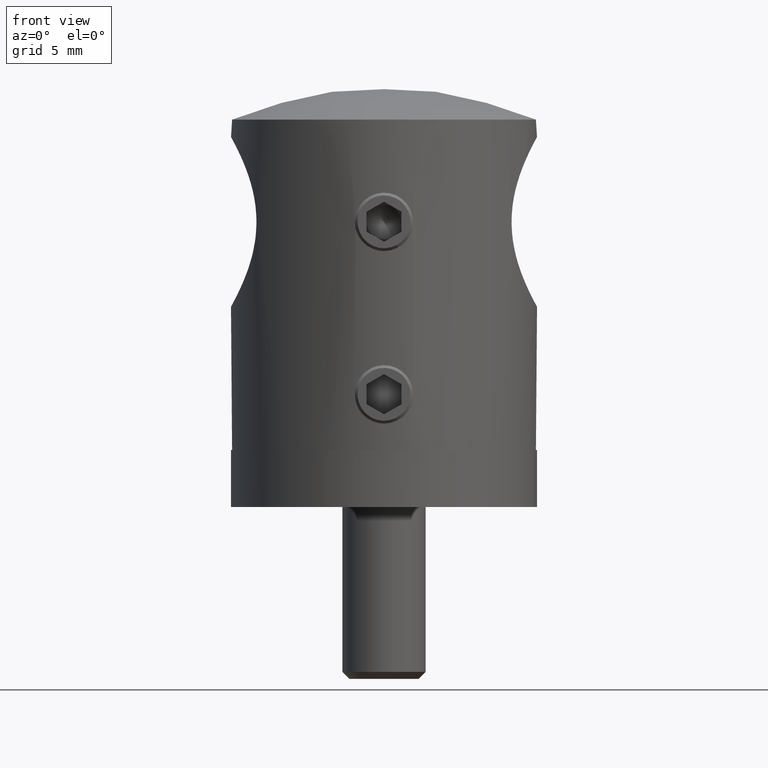
[diagram: clean part render]
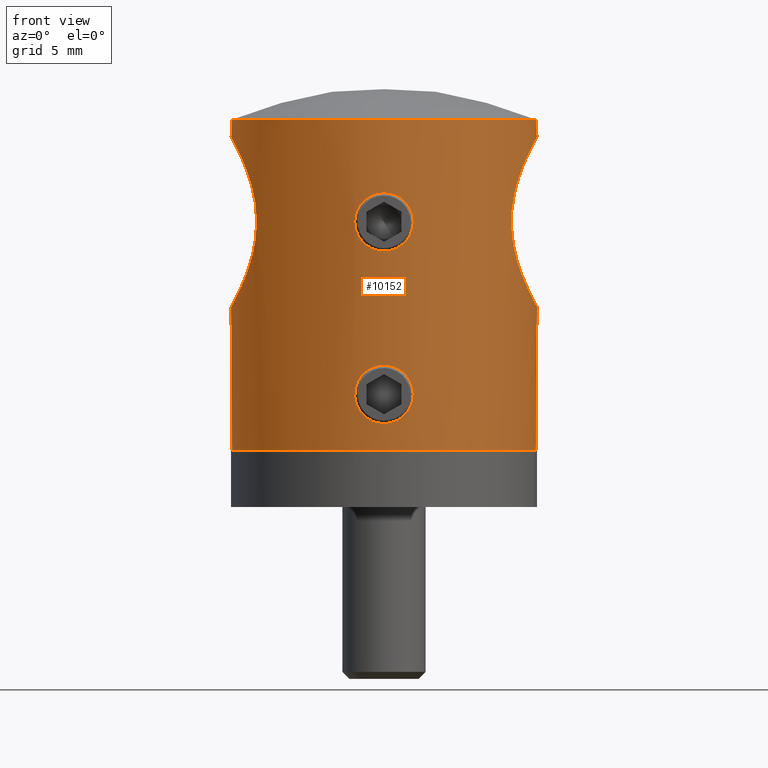
[diagram: same view with one face highlighted and labeled with its STEP entity id]
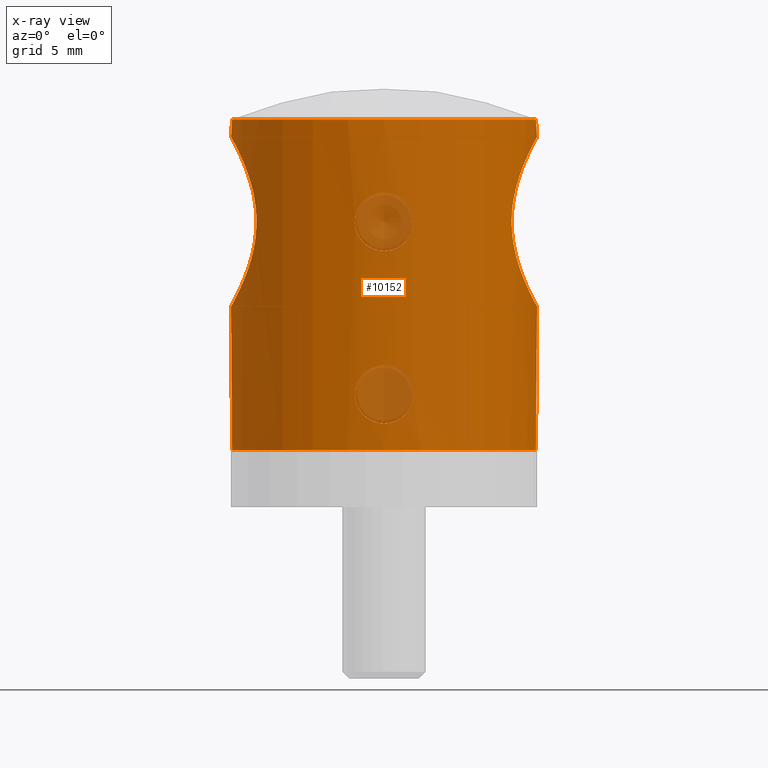
[diagram: x-ray of the same camera — body ghosted, the highlighted face saturated]
A machine part, front view. The second image highlights one B-rep face of the part: STEP entity #10152.
The next image is the same camera in x-ray: the body ghosted, the highlighted face saturated — about 6% of this face is hidden behind the body in this view.
In plain terms, the highlighted cylindrical surface (bore or boss wall) has radius 11 mm, axis along (0, 0, -1).
Its self-contained STEP definition (entity closure, byte-faithful):
#184 = CARTESIAN_POINT ( 'NONE',  ( 10.99905965626380500, 0.4319682143558744025, 22.49830428873475086 ) ) ;
#385 = CARTESIAN_POINT ( 'NONE',  ( -0.9298327460409532286, -10.96136311852415801, 5.887892041088646167 ) ) ;
#439 = CARTESIAN_POINT ( 'NONE',  ( -9.994595874194324381, -4.596398108278323846, 20.41514637220333128 ) ) ;
#443 = CARTESIAN_POINT ( 'NONE',  ( 9.182824149353340459, 6.056814456260994461, 15.57100690659150999 ) ) ;
#456 = CARTESIAN_POINT ( 'NONE',  ( -1.669073131240827346, -10.87290827909674107, 5.281760315131696082 ) ) ;
#516 = CARTESIAN_POINT ( 'NONE',  ( -10.00013541345771273, -4.584346395257772322, 12.37109864061816822 ) ) ;
#538 = CARTESIAN_POINT ( 'NONE',  ( -1.823215479922151383, -10.84812657183627138, 2.948921815245837852 ) ) ;
#552 = CARTESIAN_POINT ( 'NONE',  ( 10.56848592839725320, -3.070138311554861055, 21.68581601544170567 ) ) ;
#594 = CARTESIAN_POINT ( 'NONE',  ( -9.404246883826662184, -5.706848822141821209, 18.56371187619918572 ) ) ;
#610 = CARTESIAN_POINT ( 'NONE',  ( -1.386736755965821688, -10.91267702308485710, 5.582939538335893737 ) ) ;
#815 = CARTESIAN_POINT ( 'NONE',  ( -9.875328383823168465, 4.851642139667729836, 12.68169681171465868 ) ) ;
#869 = CARTESIAN_POINT ( 'NONE',  ( 1.388537688308394857, -10.91244555373267566, 14.81866142276740561 ) ) ;
#891 = CARTESIAN_POINT ( 'NONE',  ( -10.82153467679175840, 2.008721309774863073, 10.62652596293655805 ) ) ;
#921 = CARTESIAN_POINT ( 'NONE',  ( 9.875328383823170242, -4.851642139667734277, 12.68169681171466756 ) ) ;
#937 = CARTESIAN_POINT ( 'NONE',  ( 1.992922399063342009, -10.81809270954977897, 17.07620312179293975 ) ) ;
#963 = CARTESIAN_POINT ( 'NONE',  ( -10.97668327814535694, 0.8221493798894820015, 10.34175555824983306 ) ) ;
#967 = CARTESIAN_POINT ( 'NONE',  ( 10.77884143829793651, 2.202631448935036484, 22.09190641235104735 ) ) ;
#1018 = CARTESIAN_POINT ( 'NONE',  ( 1.678338565524257975, -10.87295724076966152, 15.10854574596645961 ) ) ;
#1041 = CARTESIAN_POINT ( 'NONE',  ( -9.655843362379462391, 5.275096090437354057, 19.48856493924066058 ) ) ;
#1091 = CARTESIAN_POINT ( 'NONE',  ( -1.670711584421387119, -10.87265779864739557, 15.12031142914611337 ) ) ;
#1116 = CARTESIAN_POINT ( 'NONE',  ( -9.369915670549831432, 5.762779879413712614, 18.41008764505287942 ) ) ;
#1149 = CARTESIAN_POINT ( 'NONE',  ( 9.548936329887270702, -5.463500988949930637, 19.14152131049769423 ) ) ;
#1163 = CARTESIAN_POINT ( 'NONE',  ( -2.033263212878625659, -10.81048461628543400, 15.85718013527820780 ) ) ;
#1270 = CYLINDRICAL_SURFACE ( 'NONE', #16967, 10.99999999999999645 ) ;
#1309 = CARTESIAN_POINT ( 'NONE',  ( 9.653232611197093860, 5.279764526992453355, 13.31975750584613039 ) ) ;
#1416 = DIRECTION ( 'NONE',  ( 0.000000000000000000, 1.000000000000000000, 0.000000000000000000 ) ) ;
#1517 = CARTESIAN_POINT ( 'NONE',  ( 1.052791956378940297, -10.95010395737945252, 2.177794140304470716 ) ) ;
#1803 = FACE_OUTER_BOUND ( 'NONE', #9130, .T. ) ;
#1805 = EDGE_LOOP ( 'NONE', ( #17865 ) ) ;
#2042 = CARTESIAN_POINT ( 'NONE',  ( 2.100080576060142423, -10.79766926613581646, 4.136065025207183332 ) ) ;
#2057 = CARTESIAN_POINT ( 'NONE',  ( 10.88660539605093192, -1.587461163400297082, 22.29327081037907377 ) ) ;
#2120 = CARTESIAN_POINT ( 'NONE',  ( -1.885922255304095962, -10.83725952041489293, 4.933980694507825504 ) ) ;
#2173 = CARTESIAN_POINT ( 'NONE',  ( -10.99999999999999645, -5.149960319306146062E-16, 10.29999999999999716 ) ) ;
#2245 = CARTESIAN_POINT ( 'NONE',  ( -9.154625459611530403, -6.098592904478558729, 15.97188860518445530 ) ) ;
#2324 = CARTESIAN_POINT ( 'NONE',  ( -9.818003290387904869, -4.962056561256329879, 19.95341231550813532 ) ) ;
#2326 = FACE_BOUND ( 'NONE', #1805, .T. ) ;
#2345 = CARTESIAN_POINT ( 'NONE',  ( -0.5474969020630482408, -10.98720387291686329, 1.967917686179495140 ) ) ;
#2404 = CARTESIAN_POINT ( 'NONE',  ( -10.82349510489186883, -1.998464203924865012, 10.62285073282916592 ) ) ;
#2474 = CARTESIAN_POINT ( 'NONE',  ( -10.23523940358924200, -4.040947010503001202, 11.81391594917569243 ) ) ;
#2544 = CARTESIAN_POINT ( 'NONE',  ( -10.56848592839724965, 3.070138311554862831, 21.68581601544170567 ) ) ;
#2599 = CARTESIAN_POINT ( 'NONE',  ( 0.5472116004057729910, -10.98720989896580491, 18.43211351988966129 ) ) ;
#2623 = CARTESIAN_POINT ( 'NONE',  ( -10.99515712557069058, 0.3851602843953765287, 22.49128501828073112 ) ) ;
#2675 = CARTESIAN_POINT ( 'NONE',  ( 1.387671354983932126, -10.91256495734889498, 17.98222472745847966 ) ) ;
#2749 = CARTESIAN_POINT ( 'NONE',  ( 0.1380551056559316814, -10.99998945361096858, 18.49994475700558993 ) ) ;
#2778 = CARTESIAN_POINT ( 'NONE',  ( -10.91341900764948925, 1.391812421171598091, 22.34254261676390385 ) ) ;
#2807 = CARTESIAN_POINT ( 'NONE',  ( 9.295422111209902027, -5.882183215968439960, 18.02788356252802515 ) ) ;
#2820 = CARTESIAN_POINT ( 'NONE',  ( 2.099837753199914836, -10.79771649180664816, 16.12415606159400028 ) ) ;
#2848 = CARTESIAN_POINT ( 'NONE',  ( -10.23201466657478242, 4.049143934664146904, 11.82103939613443977 ) ) ;
#2896 = CARTESIAN_POINT ( 'NONE',  ( -0.9298327460409540057, -10.96136311852415801, 18.28789204108864297 ) ) ;
#2927 = CARTESIAN_POINT ( 'NONE',  ( 10.34600107115468148, 3.752229823401759035, 21.22572781584417001 ) ) ;
#2983 = EDGE_CURVE ( 'NONE', #6383, #6383, #9064, .T. ) ;
#3039 = ORIENTED_EDGE ( 'NONE', *, *, #18895, .T. ) ;
#3040 = CARTESIAN_POINT ( 'NONE',  ( 10.00013541345771273, 4.584346395257774986, 12.37109864061816822 ) ) ;
#3145 = CARTESIAN_POINT ( 'NONE',  ( 0.000000000000000000, -10.99999999999999645, 1.900000000000005906 ) ) ;
#3242 = CARTESIAN_POINT ( 'NONE',  ( 10.34725143670187641, -3.748763762359414553, 11.57160730895324185 ) ) ;
#3459 = CARTESIAN_POINT ( 'NONE',  ( 10.88669551587766549, -1.625843207734909646, 10.50636876088165295 ) ) ;
#3609 = CARTESIAN_POINT ( 'NONE',  ( 10.55980625606058787, -3.085983629272203377, 11.13443178477246676 ) ) ;
#3621 = CARTESIAN_POINT ( 'NONE',  ( 2.086371845620103915, -10.80036110415988482, 4.275574042742800174 ) ) ;
#3693 = CARTESIAN_POINT ( 'NONE',  ( 0.6781376468636781674, -10.97981628967169421, 2.007749422554939489 ) ) ;
#3708 = CARTESIAN_POINT ( 'NONE',  ( 10.99515712557069236, -0.3851602843953726985, 22.49128501828073823 ) ) ;
#3762 = CARTESIAN_POINT ( 'NONE',  ( 2.032659403802353104, -10.81059865162793798, 4.545146108271634233 ) ) ;
#3842 = CARTESIAN_POINT ( 'NONE',  ( -0.2735815360057540224, -11.00002099589624471, 6.100109978512685771 ) ) ;
#3892 = CARTESIAN_POINT ( 'NONE',  ( -10.34600107115467971, -3.752229823401756370, 21.22572781584415935 ) ) ;
#3956 = EDGE_CURVE ( 'NONE', #5852, #5852, #4131, .T. ) ;
#3962 = CARTESIAN_POINT ( 'NONE',  ( -9.186070511604009781, -6.051171545997144463, 17.19691923427018310 ) ) ;
#3983 = CARTESIAN_POINT ( 'NONE',  ( -1.582514419226410674, -10.88600606640207680, 2.612812166464707264 ) ) ;
#4040 = CARTESIAN_POINT ( 'NONE',  ( -10.05928916644563031, -4.453430819430041154, 12.22689457929946322 ) ) ;
#4060 = CARTESIAN_POINT ( 'NONE',  ( -1.670711584421386453, -10.87265779864739379, 2.720311429146118787 ) ) ;
#4131 = B_SPLINE_CURVE_WITH_KNOTS ( 'NONE', 3,
 ( #5857, #17640, #9259, #4235, #10727, #17718, #7625, #19432, #869, #1018, #21362, #9550, #2820, #4510, #9405, #12824, #937, #16118, #4449, #7847, #6153, #2675, #12968, #11309, #14503, #12752, #2599, #19582, #2749, #4581, #19658, #2896, #19727, #9479, #11165, #4378, #21291, #14430, #7774, #6077, #14571, #21441, #17940, #1163, #11240, #16402, #19802, #1091, #17867, #4308, #6219, #16326, #6290, #12893, #14640, #6005 ),
 .UNSPECIFIED., .T., .F.,
 ( 4, 2, 2, 2, 2, 2, 2, 2, 2, 2, 2, 2, 2, 2, 2, 2, 2, 2, 2, 2, 2, 2, 2, 2, 2, 2, 2, 4 ),
 ( 0.000000000000000000, 0.0004112398612379109409, 0.0008224797224758220986, 0.001233719583713733040, 0.001644959444951644414, 0.002467439167427463477, 0.003289918889903286660, 0.003701158751141203455, 0.004112398612379120251, 0.004523638473617037914, 0.004934878334854954710, 0.005346118196092872372, 0.005757358057330790035, 0.006168597918568707698, 0.006579837779806624494, 0.007402317502282459820, 0.007813557363520375748, 0.008224797224758294278, 0.008636037085996209339, 0.009047276947234127870, 0.009869756669709971869, 0.01028099653094788866, 0.01069223639218580546, 0.01110347625342372226, 0.01151471611466163905, 0.01233719583713747785, 0.01274843569837539811, 0.01315967555961331664 ),
 .UNSPECIFIED. ) ;
#4191 = CARTESIAN_POINT ( 'NONE',  ( -10.99999999999999112, -0.4119544153468477909, 10.29999999999999716 ) ) ;
#4235 = CARTESIAN_POINT ( 'NONE',  ( 0.5445907593099172939, -10.98733418043456744, 14.36721771197882980 ) ) ;
#4257 = CARTESIAN_POINT ( 'NONE',  ( -10.88660539605092836, 1.587461163400300856, 22.29327081037905955 ) ) ;
#4308 = CARTESIAN_POINT ( 'NONE',  ( -1.293096815573840486, -10.92546660261072944, 14.72295840366905928 ) ) ;
#4331 = CARTESIAN_POINT ( 'NONE',  ( -10.55980625606059320, 3.085983629272203377, 11.13443178477245787 ) ) ;
#4363 = CARTESIAN_POINT ( 'NONE',  ( 9.411849063529514225, -5.694304542915052281, 18.59632450029121031 ) ) ;
#4378 = CARTESIAN_POINT ( 'NONE',  ( -1.580486696390911661, -10.88630426008027463, 17.78953165307775919 ) ) ;
#4449 = CARTESIAN_POINT ( 'NONE',  ( 1.821864279235778428, -10.84835111419837084, 17.45331546566203329 ) ) ;
#4470 = CARTESIAN_POINT ( 'NONE',  ( -10.00363043224886361, 4.584473309947989961, 20.44285449540664956 ) ) ;
#4510 = CARTESIAN_POINT ( 'NONE',  ( 2.100080576060139315, -10.79766926613582001, 16.53606502520718990 ) ) ;
#4581 = CARTESIAN_POINT ( 'NONE',  ( -0.2735815360057561318, -11.00002099589623761, 18.50010997851268257 ) ) ;
#4931 = CARTESIAN_POINT ( 'NONE',  ( 1.887465525486915707, -10.83698959357259994, 4.930840609722912049 ) ) ;
#5286 = CARTESIAN_POINT ( 'NONE',  ( 11.00000000000000000, 2.981555974335137194E-16, 10.29999999999999716 ) ) ;
#5304 = CARTESIAN_POINT ( 'NONE',  ( 0.2757686476963312483, -10.99736528176723027, 1.913679176500869383 ) ) ;
#5508 = CARTESIAN_POINT ( 'NONE',  ( -9.882311817479495275, -4.833099761158379692, 12.67314814702374726 ) ) ;
#5599 = CARTESIAN_POINT ( 'NONE',  ( -2.100101276507924997, -10.79766524018844720, 3.862846557347953791 ) ) ;
#5625 = CIRCLE ( 'NONE', #18282, 10.99999999999999645 ) ;
#5656 = CARTESIAN_POINT ( 'NONE',  ( -9.823416292433382324, -4.951332716768895637, 12.83170122485886644 ) ) ;
#5659 = CARTESIAN_POINT ( 'NONE',  ( 9.159751136064906873, 6.090938158330286178, 16.79016624204475150 ) ) ;
#5677 = CARTESIAN_POINT ( 'NONE',  ( -0.1390778096618648929, -10.99999999999999645, 1.900000000000005462 ) ) ;
#5726 = CARTESIAN_POINT ( 'NONE',  ( -10.56516037208887226, -3.081656113116343132, 11.12078256614180738 ) ) ;
#5744 = CARTESIAN_POINT ( 'NONE',  ( 0.2774242944193018867, -10.99732956950989937, 6.086135579055919287 ) ) ;
#5802 = CARTESIAN_POINT ( 'NONE',  ( -9.205781148332752295, -6.021279925512385667, 17.39743835238009950 ) ) ;
#5840 = CARTESIAN_POINT ( 'NONE',  ( 9.884558394909726431, -4.832955114603755042, 20.14278198770373152 ) ) ;
#5852 = VERTEX_POINT ( 'NONE', #13215 ) ;
#5857 = CARTESIAN_POINT ( 'NONE',  ( 1.490777987167568597E-16, -10.99999999999999467, 14.30000000000000426 ) ) ;
#5880 = DIRECTION ( 'NONE',  ( -0.000000000000000000, 1.020538999289461417E-16, -1.000000000000000000 ) ) ;
#5953 = CARTESIAN_POINT ( 'NONE',  ( -10.82333026450579361, 1.973254160026639781, 22.17554688403683727 ) ) ;
#5988 = CARTESIAN_POINT ( 'NONE',  ( 9.369915670549829656, -5.762779879413711726, 18.41008764505288298 ) ) ;
#6005 = CARTESIAN_POINT ( 'NONE',  ( 1.490777987167568597E-16, -10.99999999999999467, 14.30000000000000426 ) ) ;
#6031 = CARTESIAN_POINT ( 'NONE',  ( 10.05375444080992331, 4.465900659990698962, 20.55976037867542061 ) ) ;
#6077 = CARTESIAN_POINT ( 'NONE',  ( -2.044856290180038894, -10.80879962882139722, 16.95195426945476669 ) ) ;
#6101 = CARTESIAN_POINT ( 'NONE',  ( -9.182846360408928987, 6.056809541581210432, 17.23151101186771328 ) ) ;
#6130 = EDGE_LOOP ( 'NONE', ( #11867 ) ) ;
#6153 = CARTESIAN_POINT ( 'NONE',  ( 1.582902319642922162, -10.88596003962311087, 17.78689838275667157 ) ) ;
#6219 = CARTESIAN_POINT ( 'NONE',  ( -1.059417076819557213, -10.95179245714164828, 14.56629903712062735 ) ) ;
#6290 = CARTESIAN_POINT ( 'NONE',  ( -0.5474969020630467975, -10.98720387291686862, 14.36791768617950105 ) ) ;
#6359 = VERTEX_POINT ( 'NONE', #14954 ) ;
#6383 = VERTEX_POINT ( 'NONE', #11714 ) ;
#6475 = CARTESIAN_POINT ( 'NONE',  ( 0.000000000000000000, 0.000000000000000000, 16.39999999999999858 ) ) ;
#6636 = CARTESIAN_POINT ( 'NONE',  ( 1.387671354983932126, -10.91256495734889853, 5.582224727458489077 ) ) ;
#6982 = CARTESIAN_POINT ( 'NONE',  ( 10.97668327814536227, -0.8221493798894827787, 10.34175555824982951 ) ) ;
#7063 = CARTESIAN_POINT ( 'NONE',  ( 9.153253516029332459, 6.100651666123667383, 16.58324285485192107 ) ) ;
#7149 = CARTESIAN_POINT ( 'NONE',  ( 0.9322983872529664318, -10.96116125874258351, 2.113269296229719263 ) ) ;
#7223 = EDGE_LOOP ( 'NONE', ( #18488 ) ) ;
#7300 = CARTESIAN_POINT ( 'NONE',  ( -1.052429674837032314, -10.95014267461733759, 5.822448595598599397 ) ) ;
#7350 = CARTESIAN_POINT ( 'NONE',  ( -10.66142031955351044, -2.734231561115278986, 10.93252429363031908 ) ) ;
#7460 = CARTESIAN_POINT ( 'NONE',  ( 10.35569616419128813, -3.725345759223086972, 21.24638000732665333 ) ) ;
#7545 = EDGE_CURVE ( 'NONE', #20904, #20904, #12180, .T. ) ;
#7576 = CARTESIAN_POINT ( 'NONE',  ( -10.95673552425201969, 0.9948883876327735409, 22.42172331346568015 ) ) ;
#7581 = CARTESIAN_POINT ( 'NONE',  ( 9.818003290387901316, 4.962056561256333431, 19.95341231550813532 ) ) ;
#7625 = CARTESIAN_POINT ( 'NONE',  ( 1.052791956378939187, -10.95010395737945252, 14.57779414030447285 ) ) ;
#7649 = CARTESIAN_POINT ( 'NONE',  ( -10.65567692228154684, 2.736668129976457031, 10.94471346896226116 ) ) ;
#7655 = CARTESIAN_POINT ( 'NONE',  ( 9.876850331807258243, 4.844238823729229537, 20.11236126726327811 ) ) ;
#7685 = CARTESIAN_POINT ( 'NONE',  ( 9.648512081601323231, -5.288360497444984709, 13.33447340568116957 ) ) ;
#7727 = CARTESIAN_POINT ( 'NONE',  ( -11.00042874672050530, 0.1790107633385689678, 22.50077315433566838 ) ) ;
#7758 = CARTESIAN_POINT ( 'NONE',  ( 9.182846360408928987, -6.056809541581207768, 17.23151101186771683 ) ) ;
#7774 = CARTESIAN_POINT ( 'NONE',  ( -1.885922255304097961, -10.83725952041489649, 17.33398069450782586 ) ) ;
#7847 = CARTESIAN_POINT ( 'NONE',  ( 1.670043013049523850, -10.87275805320107480, 17.68047618358273354 ) ) ;
#7876 = CARTESIAN_POINT ( 'NONE',  ( -10.88669551587766016, 1.625843207734907425, 10.50636876088165117 ) ) ;
#8141 = FACE_BOUND ( 'NONE', #7223, .T. ) ;
#8324 = CARTESIAN_POINT ( 'NONE',  ( 10.23201466657477887, -4.049143934664146904, 11.82103939613443444 ) ) ;
#8343 = CARTESIAN_POINT ( 'NONE',  ( 10.99999999999999822, 0.4119544153468484571, 10.29999999999999538 ) ) ;
#8622 = CARTESIAN_POINT ( 'NONE',  ( 10.82153467679176373, -2.008721309774862185, 10.62652596293655805 ) ) ;
#8907 = CARTESIAN_POINT ( 'NONE',  ( -10.35109153156164119, -3.738197719850758105, 11.56340833636307686 ) ) ;
#8976 = CARTESIAN_POINT ( 'NONE',  ( -10.77884143829794361, -2.202631448935035152, 22.09190641235105090 ) ) ;
#8996 = CARTESIAN_POINT ( 'NONE',  ( -0.6806038088607763159, -10.97965432502793170, 2.008647596143616543 ) ) ;
#9064 = B_SPLINE_CURVE_WITH_KNOTS ( 'NONE', 3,
 ( #2173, #4191, #12554, #14167, #2404, #7350, #5726, #8907, #2474, #4040, #516, #5508, #5656, #15855, #15930, #14087, #15782, #19069, #2245, #18991, #12398, #3962, #5802, #17590, #10753, #19300, #594, #21010, #10605, #2324, #17446, #439, #12323, #14012, #3892, #15712, #20859, #8976, #20783, #12478, #19683, #17667, #14381, #7727, #2623, #16216, #7576, #2778, #4257, #5953, #19385, #16141, #2544, #19608, #9350, #4470, #9281, #1041, #21085, #12776, #1116, #14595, #11119, #6101, #21166, #16071, #9506, #9578, #10968, #11041, #12705, #815, #12990, #2848, #21318, #17740, #4331, #7649, #19453, #891, #7876, #963, #16278, #14456 ),
 .UNSPECIFIED., .T., .F.,
 ( 4, 2, 2, 2, 2, 2, 2, 2, 2, 2, 2, 2, 2, 2, 2, 2, 2, 2, 2, 2, 2, 2, 2, 2, 2, 2, 2, 2, 2, 2, 2, 2, 2, 2, 2, 2, 2, 2, 2, 2, 2, 4 ),
 ( 0.000000000000000000, 0.001216736210685103207, 0.002433472421370206414, 0.003650208632055309838, 0.004866944842740412829, 0.005475312948082965842, 0.006083681053425518855, 0.007300417264110619676, 0.008517153474795719631, 0.009733889685480822188, 0.01034225779082337433, 0.01095062589616592474, 0.01155899400150847689, 0.01216736210685102730, 0.01338409831753611945, 0.01399246642287865945, 0.01460083452822120119, 0.01581757073890628987, 0.01703430694959138028, 0.01764267505493392549, 0.01825104316027647069, 0.01946777937096155764, 0.02007614747630410285, 0.02068451558164664805, 0.02129288368698918979, 0.02190125179233173153, 0.02311798800301681847, 0.02433472421370190195, 0.02555146042438699236, 0.02676819663507207930, 0.02737656474041462451, 0.02798493284575716972, 0.02920166905644225666, 0.03041840526712734707, 0.03163514147781242708, 0.03285187768849751749, 0.03406861389918260097, 0.03528535010986768444, 0.03589371821521022965, 0.03650208632055277486, 0.03771882253123785833, 0.03893555874192294181 ),
 .UNSPECIFIED. ) ;
#9130 = EDGE_LOOP ( 'NONE', ( #3039 ) ) ;
#9132 = DIRECTION ( 'NONE',  ( 0.000000000000000000, 1.000000000000000000, 1.020538999289461294E-16 ) ) ;
#9149 = CARTESIAN_POINT ( 'NONE',  ( -0.2763807230148085381, -10.99736402501770982, 1.913681451969392766 ) ) ;
#9259 = CARTESIAN_POINT ( 'NONE',  ( 0.2757686476963308597, -10.99736528176723205, 14.31367917650087307 ) ) ;
#9281 = CARTESIAN_POINT ( 'NONE',  ( -9.884558394909729984, 4.832955114603755042, 20.14278198770373152 ) ) ;
#9313 = CARTESIAN_POINT ( 'NONE',  ( 9.655843362379464168, -5.275096090437352281, 19.48856493924065703 ) ) ;
#9350 = CARTESIAN_POINT ( 'NONE',  ( -10.23865757073147442, 4.032357685516516632, 20.99370868653107181 ) ) ;
#9355 = CARTESIAN_POINT ( 'NONE',  ( 9.994595874194322604, 4.596398108278324734, 20.41514637220333839 ) ) ;
#9361 = B_SPLINE_CURVE_WITH_KNOTS ( 'NONE', 3,
 ( #21784, #16729, #5304, #11664, #3693, #7149, #1517, #18865, #17103, #13378, #21713, #10480, #10414, #2042, #3621, #3762, #15057, #4931, #18791, #15583, #17242, #6636, #18936, #10340, #11590, #18413, #20159, #5744, #15728, #3842, #17396, #385, #7300, #10625, #610, #20956, #456, #12272, #2120, #19093, #12417, #5599, #14036, #15800, #20806, #13958, #538, #4060, #3983, #12344, #17609, #8996, #2345, #9149, #5677, #10846 ),
 .UNSPECIFIED., .T., .F.,
 ( 4, 2, 2, 2, 2, 2, 2, 2, 2, 2, 2, 2, 2, 2, 2, 2, 2, 2, 2, 2, 2, 2, 2, 2, 2, 2, 2, 4 ),
 ( 0.000000000000000000, 0.0004112398612379182051, 0.0008224797224758364101, 0.001233719583713754724, 0.001644959444951672820, 0.002467439167427507279, 0.003289918889903341737, 0.003701158751141256798, 0.004112398612379172293, 0.004523638473617087354, 0.004934878334855002414, 0.005346118196092918343, 0.005757358057330833404, 0.006168597918568748464, 0.006579837779806663525, 0.007402317502282495382, 0.007813557363520410443, 0.008224797224758325503, 0.008636037085996240564, 0.009047276947234155625, 0.009869756669709989216, 0.01028099653094790775, 0.01069223639218582628, 0.01110347625342374481, 0.01151471611466166334, 0.01233719583713749693, 0.01274843569837541546, 0.01315967555961333225 ),
 .UNSPECIFIED. ) ;
#9405 = CARTESIAN_POINT ( 'NONE',  ( 2.086371845620101695, -10.80036110415988482, 16.67557404274279875 ) ) ;
#9479 = CARTESIAN_POINT ( 'NONE',  ( -1.281199630984563242, -10.92573843364915653, 18.06956719231119379 ) ) ;
#9506 = CARTESIAN_POINT ( 'NONE',  ( -9.179891148193682682, 6.061232615172921889, 15.60271832034515604 ) ) ;
#9550 = CARTESIAN_POINT ( 'NONE',  ( 2.044350993406145456, -10.80888394006649911, 15.84737662988336027 ) ) ;
#9578 = CARTESIAN_POINT ( 'NONE',  ( -9.282739979215671511, 5.902514784919359769, 14.80798300707637516 ) ) ;
#9581 = CARTESIAN_POINT ( 'NONE',  ( 10.81560744150688258, 2.015142880694788641, 22.16107234963543959 ) ) ;
#10152 = ADVANCED_FACE ( 'NONE', ( #2326, #12692, #18955, #8141, #1803, #19800 ), #1270, .T. ) ;
#10340 = CARTESIAN_POINT ( 'NONE',  ( 1.054892582810815993, -10.94989690070196353, 5.820954790265369994 ) ) ;
#10353 = CARTESIAN_POINT ( 'NONE',  ( 10.97560464290935656, 0.8344455402437473968, 22.45628732122499116 ) ) ;
#10414 = CARTESIAN_POINT ( 'NONE',  ( 2.099837753199917945, -10.79771649180664639, 3.724156061594005696 ) ) ;
#10480 = CARTESIAN_POINT ( 'NONE',  ( 2.044350993406148120, -10.80888394006649378, 3.447376629883358135 ) ) ;
#10605 = CARTESIAN_POINT ( 'NONE',  ( -9.647514933004700310, -5.290201444760916694, 19.46247388205960860 ) ) ;
#10625 = CARTESIAN_POINT ( 'NONE',  ( -1.281199630984561910, -10.92573843364915831, 5.669567192311202319 ) ) ;
#10638 = CARTESIAN_POINT ( 'NONE',  ( 10.90835395832875143, 1.431035666601235823, 22.33324243480164384 ) ) ;
#10727 = CARTESIAN_POINT ( 'NONE',  ( 0.6781376468636768351, -10.97981628967169243, 14.40774942255493940 ) ) ;
#10741 = EDGE_CURVE ( 'NONE', #19308, #19308, #18783, .T. ) ;
#10753 = CARTESIAN_POINT ( 'NONE',  ( -9.288523322039358376, -5.893058497745287561, 17.98819897613593000 ) ) ;
#10846 = CARTESIAN_POINT ( 'NONE',  ( -2.168404344971008868E-16, -10.99999999999999467, 1.900000000000005906 ) ) ;
#10858 = CARTESIAN_POINT ( 'NONE',  ( 10.00363043224886717, -4.584473309947989073, 20.44285449540664246 ) ) ;
#10968 = CARTESIAN_POINT ( 'NONE',  ( -9.357734529854724315, 5.784913307303539476, 14.42355532554418573 ) ) ;
#10998 = CARTESIAN_POINT ( 'NONE',  ( 10.82333026450579005, -1.973254160026639781, 22.17554688403683727 ) ) ;
#11041 = CARTESIAN_POINT ( 'NONE',  ( -9.542046598227903687, 5.475560630793908423, 13.68158294172838296 ) ) ;
#11119 = CARTESIAN_POINT ( 'NONE',  ( -9.262708643723195578, 5.933349042232535453, 17.83071913368763717 ) ) ;
#11151 = CARTESIAN_POINT ( 'NONE',  ( 9.152699255644686005, -6.101483401673095663, 16.01703893293870706 ) ) ;
#11165 = CARTESIAN_POINT ( 'NONE',  ( -1.386736755965823242, -10.91267702308485532, 17.98293953833589143 ) ) ;
#11240 = CARTESIAN_POINT ( 'NONE',  ( -1.992727468485253395, -10.81812777981166640, 15.72331366619163262 ) ) ;
#11309 = CARTESIAN_POINT ( 'NONE',  ( 1.054892582810815549, -10.94989690070196353, 18.22095479026536324 ) ) ;
#11363 = CARTESIAN_POINT ( 'NONE',  ( 9.542046598227901910, -5.475560630793906647, 13.68158294172837763 ) ) ;
#11571 = DIRECTION ( 'NONE',  ( -0.000000000000000000, 1.020538999289461417E-16, -1.000000000000000000 ) ) ;
#11590 = CARTESIAN_POINT ( 'NONE',  ( 0.9319663072103600010, -10.96118774137462282, 5.886882479451516659 ) ) ;
#11664 = CARTESIAN_POINT ( 'NONE',  ( 0.5445907593099180710, -10.98733418043457100, 1.967217711978826333 ) ) ;
#11714 = CARTESIAN_POINT ( 'NONE',  ( -10.99999999999999645, 0.000000000000000000, 10.29999999999999716 ) ) ;
#11867 = ORIENTED_EDGE ( 'NONE', *, *, #2983, .F. ) ;
#12060 = CARTESIAN_POINT ( 'NONE',  ( 10.97324043956127326, -0.7936138331962032666, 22.45163438274045120 ) ) ;
#12180 = CIRCLE ( 'NONE', #20640, 10.99999999999999822 ) ;
#12213 = CARTESIAN_POINT ( 'NONE',  ( 10.91341900764949102, -1.391812421171597647, 22.34254261676390740 ) ) ;
#12272 = CARTESIAN_POINT ( 'NONE',  ( -1.821258053761726003, -10.84845420623088330, 5.054387843482944120 ) ) ;
#12323 = CARTESIAN_POINT ( 'NONE',  ( -10.05375444080991976, -4.465900659990696298, 20.55976037867542416 ) ) ;
#12344 = CARTESIAN_POINT ( 'NONE',  ( -1.293096815573841596, -10.92546660261072766, 2.322958403669059368 ) ) ;
#12398 = CARTESIAN_POINT ( 'NONE',  ( -9.159751136064906873, -6.090938158330281738, 16.79016624204474795 ) ) ;
#12417 = CARTESIAN_POINT ( 'NONE',  ( -2.099795748563276110, -10.79772466112062013, 4.278932909499355119 ) ) ;
#12478 = CARTESIAN_POINT ( 'NONE',  ( -10.88034175087272004, -1.629824696895266545, 22.28170272155428933 ) ) ;
#12554 = CARTESIAN_POINT ( 'NONE',  ( -10.97695157601235572, -0.8154917404544909099, 10.34128971045530498 ) ) ;
#12692 = FACE_BOUND ( 'NONE', #15244, .T. ) ;
#12705 = CARTESIAN_POINT ( 'NONE',  ( -9.648512081601321455, 5.288360497444982045, 13.33447340568116957 ) ) ;
#12709 = CARTESIAN_POINT ( 'NONE',  ( 9.362046769079286790, 5.775541901457288851, 18.37322836746236376 ) ) ;
#12752 = CARTESIAN_POINT ( 'NONE',  ( 0.6781069570240086941, -10.97981643080941261, 18.39224939299074890 ) ) ;
#12776 = CARTESIAN_POINT ( 'NONE',  ( -9.411849063529510673, 5.694304542915054945, 18.59632450029121387 ) ) ;
#12824 = CARTESIAN_POINT ( 'NONE',  ( 2.032659403802351772, -10.81059865162793976, 16.94514610827163281 ) ) ;
#12893 = CARTESIAN_POINT ( 'NONE',  ( -0.2763807230148062621, -10.99736402501771515, 14.31368145196939601 ) ) ;
#12947 = EDGE_CURVE ( 'NONE', #14320, #14320, #9361, .T. ) ;
#12968 = CARTESIAN_POINT ( 'NONE',  ( 1.281990447053923177, -10.92563686889391761, 18.06888441874269091 ) ) ;
#12990 = CARTESIAN_POINT ( 'NONE',  ( -9.996537732736376469, 4.599883052709779818, 12.37464005127818467 ) ) ;
#13184 = CARTESIAN_POINT ( 'NONE',  ( 9.547459403721239468, 5.466075739822141344, 13.66354435040356030 ) ) ;
#13215 = CARTESIAN_POINT ( 'NONE',  ( 0.000000000000000000, -10.99999999999999822, 14.30000000000000426 ) ) ;
#13322 = CARTESIAN_POINT ( 'NONE',  ( 10.88928147642777411, 1.606873239554577060, 10.50161415780659269 ) ) ;
#13378 = CARTESIAN_POINT ( 'NONE',  ( 1.678338565524259307, -10.87295724076965442, 2.708545745966452589 ) ) ;
#13498 = CARTESIAN_POINT ( 'NONE',  ( 0.000000000000000000, 11.00000000000000000, 1.122592899218407300E-15 ) ) ;
#13945 = CARTESIAN_POINT ( 'NONE',  ( 9.257007648696454538, 5.942224152987879648, 17.79307836241350316 ) ) ;
#13958 = CARTESIAN_POINT ( 'NONE',  ( -1.887604345443003817, -10.83696457773361388, 3.069507123571954210 ) ) ;
#14012 = CARTESIAN_POINT ( 'NONE',  ( -10.22984273932647881, -4.054541376369452443, 20.97407856064159404 ) ) ;
#14036 = CARTESIAN_POINT ( 'NONE',  ( -2.086595700918373542, -10.80031737092473243, 3.726264581591913316 ) ) ;
#14087 = CARTESIAN_POINT ( 'NONE',  ( -9.364778303763204192, -5.773464504138156705, 14.39169695136983584 ) ) ;
#14167 = CARTESIAN_POINT ( 'NONE',  ( -10.88928147642777589, -1.606873239554577726, 10.50161415780659802 ) ) ;
#14317 = CARTESIAN_POINT ( 'NONE',  ( 0.000000000000000000, 1.673683958834716452E-15, 0.000000000000000000 ) ) ;
#14320 = VERTEX_POINT ( 'NONE', #3145 ) ;
#14381 = CARTESIAN_POINT ( 'NONE',  ( -10.99905965626381033, -0.4319682143558702947, 22.49830428873472954 ) ) ;
#14386 = CARTESIAN_POINT ( 'NONE',  ( 9.541437754094058477, 5.476577152540516913, 19.11591475201606372 ) ) ;
#14430 = CARTESIAN_POINT ( 'NONE',  ( -1.821258053761728668, -10.84845420623087975, 17.45438784348293382 ) ) ;
#14456 = CARTESIAN_POINT ( 'NONE',  ( -10.99999999999999645, -5.149960319306146062E-16, 10.29999999999999716 ) ) ;
#14503 = CARTESIAN_POINT ( 'NONE',  ( 0.9319663072103588908, -10.96118774137462815, 18.28688247945151346 ) ) ;
#14571 = CARTESIAN_POINT ( 'NONE',  ( -2.099795748563277442, -10.79772466112061835, 16.67893290949935547 ) ) ;
#14595 = CARTESIAN_POINT ( 'NONE',  ( -9.295422111209903804, 5.882183215968441736, 18.02788356252802870 ) ) ;
#14626 = CARTESIAN_POINT ( 'NONE',  ( 9.179891148193682682, -6.061232615172921001, 15.60271832034515604 ) ) ;
#14640 = CARTESIAN_POINT ( 'NONE',  ( -0.1390778096618680293, -10.99999999999999822, 14.30000000000000249 ) ) ;
#14691 = CARTESIAN_POINT ( 'NONE',  ( 9.262708643723190249, -5.933349042232532788, 17.83071913368764072 ) ) ;
#14787 = CARTESIAN_POINT ( 'NONE',  ( 9.882311817479488170, 4.833099761158376140, 12.67314814702374726 ) ) ;
#14894 = DIRECTION ( 'NONE',  ( -0.000000000000000000, 1.020538999289461417E-16, -1.000000000000000000 ) ) ;
#14954 = CARTESIAN_POINT ( 'NONE',  ( 0.000000000000000000, 10.99999999999999645, 23.74878637916746627 ) ) ;
#15029 = CARTESIAN_POINT ( 'NONE',  ( 10.99999999999999822, 6.225287895665715197E-16, 10.29999999999999716 ) ) ;
#15057 = CARTESIAN_POINT ( 'NONE',  ( 1.992922399063344230, -10.81809270954977720, 4.676203121792943840 ) ) ;
#15071 = CARTESIAN_POINT ( 'NONE',  ( 10.56516037208887582, 3.081656113116342688, 11.12078256614181626 ) ) ;
#15244 = EDGE_LOOP ( 'NONE', ( #19907 ) ) ;
#15583 = CARTESIAN_POINT ( 'NONE',  ( 1.670043013049523406, -10.87275805320107125, 5.280476183582731409 ) ) ;
#15712 = CARTESIAN_POINT ( 'NONE',  ( -10.56075521959791885, -3.096678220883583244, 21.67043277127627476 ) ) ;
#15728 = CARTESIAN_POINT ( 'NONE',  ( 0.1380551056559320700, -10.99998945361096858, 6.099944757005588691 ) ) ;
#15739 = CARTESIAN_POINT ( 'NONE',  ( 10.23865757073147620, -4.032357685516519297, 20.99370868653107536 ) ) ;
#15782 = CARTESIAN_POINT ( 'NONE',  ( -9.287385638928906673, -5.895229317790466439, 14.78182133336428628 ) ) ;
#15788 = CARTESIAN_POINT ( 'NONE',  ( 9.154625459611517968, 6.098592904478552512, 15.97188860518445175 ) ) ;
#15800 = CARTESIAN_POINT ( 'NONE',  ( -2.033263212878623882, -10.81048461628543578, 3.457180135278213218 ) ) ;
#15855 = CARTESIAN_POINT ( 'NONE',  ( -9.653232611197097413, -5.279764526992454243, 13.31975750584613394 ) ) ;
#15930 = CARTESIAN_POINT ( 'NONE',  ( -9.547459403721237692, -5.466075739822144008, 13.66354435040356741 ) ) ;
#15935 = CARTESIAN_POINT ( 'NONE',  ( 9.404246883826665737, 5.706848822141820321, 18.56371187619918572 ) ) ;
#16071 = CARTESIAN_POINT ( 'NONE',  ( -9.152699255644687781, 6.101483401673098328, 16.01703893293870351 ) ) ;
#16118 = CARTESIAN_POINT ( 'NONE',  ( 1.887465525486913043, -10.83698959357259994, 17.33084060972290885 ) ) ;
#16141 = CARTESIAN_POINT ( 'NONE',  ( -10.66475748890668918, 2.721688767266851716, 21.87398493998483318 ) ) ;
#16216 = CARTESIAN_POINT ( 'NONE',  ( -10.97324043956127859, 0.7936138331962050430, 22.45163438274044765 ) ) ;
#16278 = CARTESIAN_POINT ( 'NONE',  ( -11.00000000000000000, 0.4119544153468409076, 10.29999999999999893 ) ) ;
#16326 = CARTESIAN_POINT ( 'NONE',  ( -0.6806038088607746506, -10.97965432502793170, 14.40864759614361823 ) ) ;
#16402 = CARTESIAN_POINT ( 'NONE',  ( -1.887604345443004705, -10.83696457773361210, 15.46950712357194746 ) ) ;
#16467 = ORIENTED_EDGE ( 'NONE', *, *, #7545, .F. ) ;
#16468 = CARTESIAN_POINT ( 'NONE',  ( 9.823416292433380548, 4.951332716768897413, 12.83170122485886822 ) ) ;
#16729 = CARTESIAN_POINT ( 'NONE',  ( 0.1390778096618654203, -10.99999999999999289, 1.900000000000006128 ) ) ;
#16744 = CARTESIAN_POINT ( 'NONE',  ( 10.23523940358923667, 4.040947010503002979, 11.81391594917569066 ) ) ;
#16967 = AXIS2_PLACEMENT_3D ( 'NONE', #6475, #14894, #18258 ) ;
#17018 = CARTESIAN_POINT ( 'NONE',  ( 10.50807610336932107, -3.257306727324835727, 11.23869160819104351 ) ) ;
#17040 = CARTESIAN_POINT ( 'NONE',  ( 10.88034175087271649, 1.629824696895270320, 22.28170272155429288 ) ) ;
#17103 = CARTESIAN_POINT ( 'NONE',  ( 1.388537688308397522, -10.91244555373267033, 2.418661422767408364 ) ) ;
#17151 = CARTESIAN_POINT ( 'NONE',  ( 11.00000000000000178, -0.4119544153468625014, 10.30000000000000071 ) ) ;
#17179 = CARTESIAN_POINT ( 'NONE',  ( 11.00042874672051063, -0.1790107633385678576, 22.50077315433566838 ) ) ;
#17227 = CARTESIAN_POINT ( 'NONE',  ( 9.186070511604013333, 6.051171545997144463, 17.19691923427019020 ) ) ;
#17242 = CARTESIAN_POINT ( 'NONE',  ( 1.582902319642922828, -10.88596003962310377, 5.386898382756673875 ) ) ;
#17346 = EDGE_LOOP ( 'NONE', ( #16467 ) ) ;
#17396 = CARTESIAN_POINT ( 'NONE',  ( -0.5505417721006513609, -10.98913941872515210, 6.044946193628506492 ) ) ;
#17446 = CARTESIAN_POINT ( 'NONE',  ( -9.876850331807261796, -4.844238823729226873, 20.11236126726327456 ) ) ;
#17452 = CARTESIAN_POINT ( 'NONE',  ( 9.288523322039354824, 5.893058497745284896, 17.98819897613593710 ) ) ;
#17550 = CARTESIAN_POINT ( 'NONE',  ( 10.66475748890669095, -2.721688767266846387, 21.87398493998482962 ) ) ;
#17590 = CARTESIAN_POINT ( 'NONE',  ( -9.257007648696450985, -5.942224152987878760, 17.79307836241349605 ) ) ;
#17595 = CARTESIAN_POINT ( 'NONE',  ( 9.647514933004712745, 5.290201444760913141, 19.46247388205959439 ) ) ;
#17609 = CARTESIAN_POINT ( 'NONE',  ( -1.059417076819558323, -10.95179245714164828, 2.166299037120627435 ) ) ;
#17640 = CARTESIAN_POINT ( 'NONE',  ( 0.1390778096618653370, -10.99999999999999112, 14.30000000000000604 ) ) ;
#17667 = CARTESIAN_POINT ( 'NONE',  ( -10.97560464290935478, -0.8344455402437457314, 22.45628732122498761 ) ) ;
#17718 = CARTESIAN_POINT ( 'NONE',  ( 0.9322983872529645444, -10.96116125874258351, 14.51326929622971385 ) ) ;
#17740 = CARTESIAN_POINT ( 'NONE',  ( -10.50807610336931397, 3.257306727324836171, 11.23869160819103996 ) ) ;
#17772 = CARTESIAN_POINT ( 'NONE',  ( 9.357734529854720762, -5.784913307303535035, 14.42355532554417508 ) ) ;
#17865 = ORIENTED_EDGE ( 'NONE', *, *, #12947, .F. ) ;
#17867 = CARTESIAN_POINT ( 'NONE',  ( -1.582514419226411562, -10.88600606640207857, 15.01281216646470718 ) ) ;
#17940 = CARTESIAN_POINT ( 'NONE',  ( -2.086595700918375762, -10.80031737092473243, 16.12626458159190435 ) ) ;
#18176 = CARTESIAN_POINT ( 'NONE',  ( 10.65712405073123747, 2.750588877777290442, 21.85910216543437201 ) ) ;
#18225 = CARTESIAN_POINT ( 'NONE',  ( 9.364778303763211298, 5.773464504138154041, 14.39169695136983584 ) ) ;
#18258 = DIRECTION ( 'NONE',  ( 0.000000000000000000, 1.000000000000000000, 0.000000000000000000 ) ) ;
#18282 = AXIS2_PLACEMENT_3D ( 'NONE', #21697, #11571, #1416 ) ;
#18363 = CARTESIAN_POINT ( 'NONE',  ( 10.82349510489186706, 1.998464203924865901, 10.62285073282916592 ) ) ;
#18413 = CARTESIAN_POINT ( 'NONE',  ( 0.6781069570240105815, -10.97981643080941971, 5.992249392990765422 ) ) ;
#18428 = CARTESIAN_POINT ( 'NONE',  ( 10.66142031955350156, 2.734231561115276765, 10.93252429363031553 ) ) ;
#18488 = ORIENTED_EDGE ( 'NONE', *, *, #10741, .F. ) ;
#18705 = CARTESIAN_POINT ( 'NONE',  ( 10.65567692228155039, -2.736668129976453034, 10.94471346896226294 ) ) ;
#18783 = B_SPLINE_CURVE_WITH_KNOTS ( 'NONE', 3,
 ( #19731, #8343, #21729, #13322, #18363, #18428, #15071, #19880, #16744, #20174, #3040, #14787, #16468, #1309, #13184, #18225, #19949, #443, #15788, #7063, #5659, #17227, #20578, #13945, #17452, #12709, #15935, #14386, #17595, #7581, #7655, #9355, #6031, #21246, #2927, #21541, #18176, #967, #9581, #17040, #10638, #10353, #184, #17179, #3708, #12060, #20602, #12213, #2057, #10998, #19340, #17550, #552, #7460, #15739, #10858, #5840, #9313, #1149, #4363, #5988, #2807, #14691, #7758, #21276, #11151, #14626, #21495, #17772, #11363, #7685, #921, #21779, #8324, #3242, #17018, #3609, #18705, #20499, #8622, #3459, #6982, #17151, #5286 ),
 .UNSPECIFIED., .T., .F.,
 ( 4, 2, 2, 2, 2, 2, 2, 2, 2, 2, 2, 2, 2, 2, 2, 2, 2, 2, 2, 2, 2, 2, 2, 2, 2, 2, 2, 2, 2, 2, 2, 2, 2, 2, 2, 2, 2, 2, 2, 2, 2, 4 ),
 ( 0.000000000000000000, 0.001216736210685062875, 0.002433472421370125750, 0.003650208632055187540, 0.004866944842740248897, 0.005475312948082781093, 0.006083681053425311555, 0.007300417264110382019, 0.008517153474795452484, 0.009733889685480523815, 0.01034225779082305861, 0.01095062589616559688, 0.01155899400150813168, 0.01216736210685066648, 0.01338409831753574648, 0.01399246642287828822, 0.01460083452822082996, 0.01581757073890592905, 0.01703430694959102640, 0.01764267505493357507, 0.01825104316027612375, 0.01946777937096122110, 0.02007614747630376978, 0.02068451558164631846, 0.02129288368698886713, 0.02190125179233141581, 0.02311798800301651316, 0.02433472421370161051, 0.02555146042438671133, 0.02676819663507180522, 0.02737656474041436083, 0.02798493284575690951, 0.02920166905644202421, 0.03041840526712714238, 0.03163514147781225361, 0.03285187768849736484, 0.03406861389918248301, 0.03528535010986760118, 0.03589371821521016026, 0.03650208632055271241, 0.03771882253123782364, 0.03893555874192293487 ),
 .UNSPECIFIED. ) ;
#18791 = CARTESIAN_POINT ( 'NONE',  ( 1.821864279235779316, -10.84835111419837261, 5.053315465662032935 ) ) ;
#18865 = CARTESIAN_POINT ( 'NONE',  ( 1.280823970048208471, -10.92577857814183773, 2.330181130698641745 ) ) ;
#18895 = EDGE_CURVE ( 'NONE', #6359, #6359, #5625, .T. ) ;
#18936 = CARTESIAN_POINT ( 'NONE',  ( 1.281990447053923621, -10.92563686889391938, 5.668884418742698550 ) ) ;
#18955 = FACE_BOUND ( 'NONE', #6130, .T. ) ;
#18991 = CARTESIAN_POINT ( 'NONE',  ( -9.153253516029334236, -6.100651666123670935, 16.58324285485192817 ) ) ;
#19069 = CARTESIAN_POINT ( 'NONE',  ( -9.182824149353340459, -6.056814456260994461, 15.57100690659151532 ) ) ;
#19093 = CARTESIAN_POINT ( 'NONE',  ( -2.044856290180036229, -10.80879962882139189, 4.551954269454761004 ) ) ;
#19300 = CARTESIAN_POINT ( 'NONE',  ( -9.362046769079295672, -5.775541901457289740, 18.37322836746237797 ) ) ;
#19308 = VERTEX_POINT ( 'NONE', #15029 ) ;
#19340 = CARTESIAN_POINT ( 'NONE',  ( 10.78664010805815998, -2.164383443384268801, 22.10666010265787662 ) ) ;
#19385 = CARTESIAN_POINT ( 'NONE',  ( -10.78664010805816176, 2.164383443384269690, 22.10666010265788017 ) ) ;
#19432 = CARTESIAN_POINT ( 'NONE',  ( 1.280823970048206473, -10.92577857814184661, 14.73018113069864832 ) ) ;
#19453 = CARTESIAN_POINT ( 'NONE',  ( -10.70011745089922783, 2.557856534737483312, 10.85862283480468271 ) ) ;
#19582 = CARTESIAN_POINT ( 'NONE',  ( 0.2774242944193012761, -10.99732956950989937, 18.48613557905591165 ) ) ;
#19608 = CARTESIAN_POINT ( 'NONE',  ( -10.35569616419128636, 3.725345759223086084, 21.24638000732666754 ) ) ;
#19658 = CARTESIAN_POINT ( 'NONE',  ( -0.5505417721006502507, -10.98913941872515565, 18.44494619362851040 ) ) ;
#19683 = CARTESIAN_POINT ( 'NONE',  ( -10.90835395832875498, -1.431035666601235601, 22.33324243480164029 ) ) ;
#19727 = CARTESIAN_POINT ( 'NONE',  ( -1.052429674837036089, -10.95014267461733581, 18.22244859559859265 ) ) ;
#19731 = CARTESIAN_POINT ( 'NONE',  ( 11.00000000000000000, 2.981555974335137194E-16, 10.29999999999999716 ) ) ;
#19800 = FACE_OUTER_BOUND ( 'NONE', #17346, .T. ) ;
#19802 = CARTESIAN_POINT ( 'NONE',  ( -1.823215479922152715, -10.84812657183626605, 15.34892181524584309 ) ) ;
#19880 = CARTESIAN_POINT ( 'NONE',  ( 10.35109153156164297, 3.738197719850754108, 11.56340833636307686 ) ) ;
#19907 = ORIENTED_EDGE ( 'NONE', *, *, #3956, .F. ) ;
#19949 = CARTESIAN_POINT ( 'NONE',  ( 9.287385638928908449, 5.895229317790466439, 14.78182133336428272 ) ) ;
#20159 = CARTESIAN_POINT ( 'NONE',  ( 0.5472116004057736571, -10.98720989896580136, 6.032113519889664488 ) ) ;
#20174 = CARTESIAN_POINT ( 'NONE',  ( 10.05928916644563031, 4.453430819430040266, 12.22689457929945611 ) ) ;
#20499 = CARTESIAN_POINT ( 'NONE',  ( 10.70011745089923139, -2.557856534737481979, 10.85862283480468271 ) ) ;
#20578 = CARTESIAN_POINT ( 'NONE',  ( 9.205781148332754071, 6.021279925512389219, 17.39743835238009595 ) ) ;
#20602 = CARTESIAN_POINT ( 'NONE',  ( 10.95673552425202502, -0.9948883876327746512, 22.42172331346568015 ) ) ;
#20640 = AXIS2_PLACEMENT_3D ( 'NONE', #14317, #5880, #9132 ) ;
#20783 = CARTESIAN_POINT ( 'NONE',  ( -10.81560744150687903, -2.015142880694786420, 22.16107234963544670 ) ) ;
#20806 = CARTESIAN_POINT ( 'NONE',  ( -1.992727468485252063, -10.81812777981165752, 3.323313666191630045 ) ) ;
#20859 = CARTESIAN_POINT ( 'NONE',  ( -10.65712405073124991, -2.750588877777289998, 21.85910216543440043 ) ) ;
#20904 = VERTEX_POINT ( 'NONE', #13498 ) ;
#20956 = CARTESIAN_POINT ( 'NONE',  ( -1.580486696390911883, -10.88630426008028529, 5.389531653077755280 ) ) ;
#21010 = CARTESIAN_POINT ( 'NONE',  ( -9.541437754094058477, -5.476577152540516025, 19.11591475201607437 ) ) ;
#21085 = CARTESIAN_POINT ( 'NONE',  ( -9.548936329887265373, 5.463500988949929749, 19.14152131049769423 ) ) ;
#21166 = CARTESIAN_POINT ( 'NONE',  ( -9.154733802318572700, 6.098430320488782641, 16.82884321834455932 ) ) ;
#21246 = CARTESIAN_POINT ( 'NONE',  ( 10.22984273932647170, 4.054541376369449779, 20.97407856064159404 ) ) ;
#21276 = CARTESIAN_POINT ( 'NONE',  ( 9.154733802318576252, -6.098430320488784417, 16.82884321834455932 ) ) ;
#21291 = CARTESIAN_POINT ( 'NONE',  ( -1.669073131240830454, -10.87290827909673752, 17.68176031513168311 ) ) ;
#21318 = CARTESIAN_POINT ( 'NONE',  ( -10.34725143670187464, 3.748763762359419438, 11.57160730895324363 ) ) ;
#21362 = CARTESIAN_POINT ( 'NONE',  ( 1.834681010053395012, -10.84644128760293391, 15.34230951370959239 ) ) ;
#21441 = CARTESIAN_POINT ( 'NONE',  ( -2.100101276507927661, -10.79766524018844898, 16.26284655734795592 ) ) ;
#21495 = CARTESIAN_POINT ( 'NONE',  ( 9.282739979215675064, -5.902514784919364210, 14.80798300707637516 ) ) ;
#21541 = CARTESIAN_POINT ( 'NONE',  ( 10.56075521959791885, 3.096678220883582355, 21.67043277127627832 ) ) ;
#21697 = CARTESIAN_POINT ( 'NONE',  ( 0.000000000000000000, -7.499723097387591609E-16, 23.74878637916746627 ) ) ;
#21713 = CARTESIAN_POINT ( 'NONE',  ( 1.834681010053396122, -10.84644128760293391, 2.942309513709597368 ) ) ;
#21729 = CARTESIAN_POINT ( 'NONE',  ( 10.97695157601236104, 0.8154917404544913540, 10.34128971045530676 ) ) ;
#21779 = CARTESIAN_POINT ( 'NONE',  ( 9.996537732736378246, -4.599883052709786035, 12.37464005127819178 ) ) ;
#21784 = CARTESIAN_POINT ( 'NONE',  ( -2.168404344971008868E-16, -10.99999999999999467, 1.900000000000005906 ) ) ;